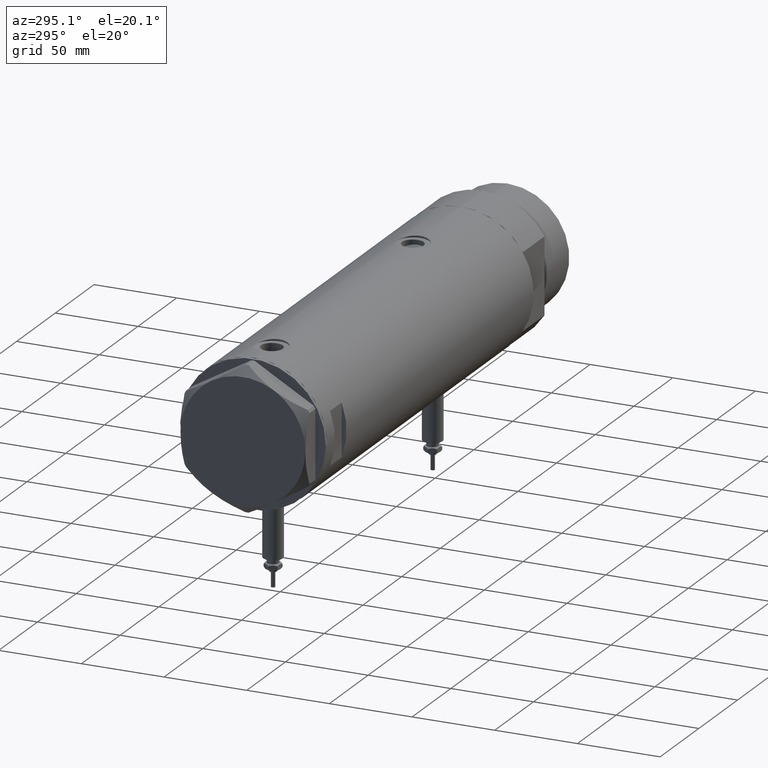
[diagram: clean part render]
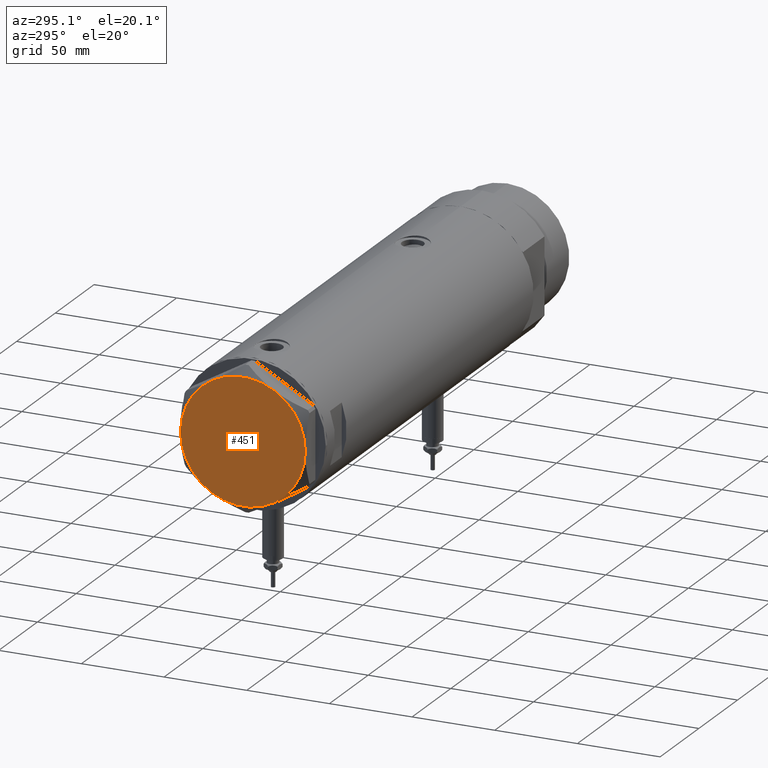
[diagram: same view with one face highlighted and labeled with its STEP entity id]
A machine part, auxiliary view. The second image highlights one B-rep face of the part: STEP entity #451.
In plain terms, the highlighted planar face has unit normal (-1, -0, 0).
Its self-contained STEP definition (entity closure, byte-faithful):
#1 = ORIENTED_EDGE ( 'NONE', *, *, #2445, .T. ) ;
#171 = EDGE_CURVE ( 'NONE', #881, #3537, #4488, .T. ) ;
#236 = AXIS2_PLACEMENT_3D ( 'NONE', #271, #365, #2125 ) ;
#271 = CARTESIAN_POINT ( 'NONE',  ( 0.000000000000000000, 0.000000000000000000, 13.00000000000000000 ) ) ;
#280 = ORIENTED_EDGE ( 'NONE', *, *, #4641, .T. ) ;
#285 = CARTESIAN_POINT ( 'NONE',  ( 0.000000000000000000, 0.000000000000000000, 13.00000000000000000 ) ) ;
#307 = CIRCLE ( 'NONE', #3998, 37.75000000000000000 ) ;
#365 = DIRECTION ( 'NONE',  ( 0.000000000000000000, 0.000000000000000000, 1.000000000000000000 ) ) ;
#451 = ADVANCED_FACE ( 'NONE', ( #4978 ), #728, .T. ) ;
#535 = CARTESIAN_POINT ( 'NONE',  ( -18.87499999999999645, -32.69245899286255508, 13.00000000000000000 ) ) ;
#603 = AXIS2_PLACEMENT_3D ( 'NONE', #5585, #4331, #818 ) ;
#728 = PLANE ( 'NONE',  #4785 ) ;
#757 = DIRECTION ( 'NONE',  ( 0.000000000000000000, 0.000000000000000000, 1.000000000000000000 ) ) ;
#818 = DIRECTION ( 'NONE',  ( 1.000000000000000000, 0.000000000000000000, 0.000000000000000000 ) ) ;
#832 = DIRECTION ( 'NONE',  ( 0.000000000000000000, 0.000000000000000000, 1.000000000000000000 ) ) ;
#859 = CARTESIAN_POINT ( 'NONE',  ( 0.000000000000000000, 0.000000000000000000, 13.00000000000000000 ) ) ;
#881 = VERTEX_POINT ( 'NONE', #4818 ) ;
#1150 = EDGE_LOOP ( 'NONE', ( #2306, #280, #5092, #5206, #3238, #1 ) ) ;
#1161 = VERTEX_POINT ( 'NONE', #4317 ) ;
#1202 = CIRCLE ( 'NONE', #4613, 37.75000000000000000 ) ;
#1323 = EDGE_CURVE ( 'NONE', #5809, #5623, #4210, .T. ) ;
#1381 = AXIS2_PLACEMENT_3D ( 'NONE', #3454, #4805, #5688 ) ;
#1721 = CARTESIAN_POINT ( 'NONE',  ( -18.87499999999999645, 32.69245899286256218, 13.00000000000000000 ) ) ;
#2125 = DIRECTION ( 'NONE',  ( 1.000000000000000000, 0.000000000000000000, 0.000000000000000000 ) ) ;
#2306 = ORIENTED_EDGE ( 'NONE', *, *, #171, .T. ) ;
#2445 = EDGE_CURVE ( 'NONE', #5623, #881, #1202, .T. ) ;
#2578 = CIRCLE ( 'NONE', #236, 37.75000000000000000 ) ;
#2615 = DIRECTION ( 'NONE',  ( 1.000000000000000000, 0.000000000000000000, 0.000000000000000000 ) ) ;
#2625 = CARTESIAN_POINT ( 'NONE',  ( -37.75000000000000000, -1.201851678989727067E-14, 13.00000000000000000 ) ) ;
#2798 = EDGE_CURVE ( 'NONE', #3832, #5809, #2578, .T. ) ;
#2860 = CARTESIAN_POINT ( 'NONE',  ( 37.75000000000000711, 1.802777518484591547E-14, 13.00000000000000000 ) ) ;
#3238 = ORIENTED_EDGE ( 'NONE', *, *, #1323, .T. ) ;
#3454 = CARTESIAN_POINT ( 'NONE',  ( 0.000000000000000000, 0.000000000000000000, 13.00000000000000000 ) ) ;
#3510 = CARTESIAN_POINT ( 'NONE',  ( 0.000000000000000000, 0.000000000000000000, 13.00000000000000000 ) ) ;
#3537 = VERTEX_POINT ( 'NONE', #2860 ) ;
#3656 = DIRECTION ( 'NONE',  ( 1.000000000000000000, 0.000000000000000000, 0.000000000000000000 ) ) ;
#3744 = EDGE_CURVE ( 'NONE', #1161, #3832, #5007, .T. ) ;
#3832 = VERTEX_POINT ( 'NONE', #1721 ) ;
#3998 = AXIS2_PLACEMENT_3D ( 'NONE', #859, #832, #3656 ) ;
#3999 = DIRECTION ( 'NONE',  ( 1.000000000000000000, 0.000000000000000000, -0.000000000000000000 ) ) ;
#4210 = CIRCLE ( 'NONE', #1381, 37.75000000000000000 ) ;
#4317 = CARTESIAN_POINT ( 'NONE',  ( 18.87500000000000000, 32.69245899286255508, 13.00000000000000000 ) ) ;
#4331 = DIRECTION ( 'NONE',  ( 0.000000000000000000, 0.000000000000000000, 1.000000000000000000 ) ) ;
#4488 = CIRCLE ( 'NONE', #603, 37.75000000000000000 ) ;
#4499 = DIRECTION ( 'NONE',  ( 0.000000000000000000, 0.000000000000000000, 1.000000000000000000 ) ) ;
#4613 = AXIS2_PLACEMENT_3D ( 'NONE', #4928, #757, #2615 ) ;
#4641 = EDGE_CURVE ( 'NONE', #3537, #1161, #307, .T. ) ;
#4724 = AXIS2_PLACEMENT_3D ( 'NONE', #285, #4499, #4976 ) ;
#4785 = AXIS2_PLACEMENT_3D ( 'NONE', #3510, #5416, #3999 ) ;
#4805 = DIRECTION ( 'NONE',  ( 0.000000000000000000, 0.000000000000000000, 1.000000000000000000 ) ) ;
#4818 = CARTESIAN_POINT ( 'NONE',  ( 18.87499999999998579, -32.69245899286256218, 13.00000000000000000 ) ) ;
#4928 = CARTESIAN_POINT ( 'NONE',  ( 0.000000000000000000, 0.000000000000000000, 13.00000000000000000 ) ) ;
#4976 = DIRECTION ( 'NONE',  ( 1.000000000000000000, 0.000000000000000000, 0.000000000000000000 ) ) ;
#4978 = FACE_OUTER_BOUND ( 'NONE', #1150, .T. ) ;
#5007 = CIRCLE ( 'NONE', #4724, 37.75000000000000000 ) ;
#5092 = ORIENTED_EDGE ( 'NONE', *, *, #3744, .T. ) ;
#5206 = ORIENTED_EDGE ( 'NONE', *, *, #2798, .T. ) ;
#5416 = DIRECTION ( 'NONE',  ( 0.000000000000000000, 0.000000000000000000, 1.000000000000000000 ) ) ;
#5585 = CARTESIAN_POINT ( 'NONE',  ( 0.000000000000000000, 0.000000000000000000, 13.00000000000000000 ) ) ;
#5623 = VERTEX_POINT ( 'NONE', #535 ) ;
#5688 = DIRECTION ( 'NONE',  ( 1.000000000000000000, 0.000000000000000000, 0.000000000000000000 ) ) ;
#5809 = VERTEX_POINT ( 'NONE', #2625 ) ;